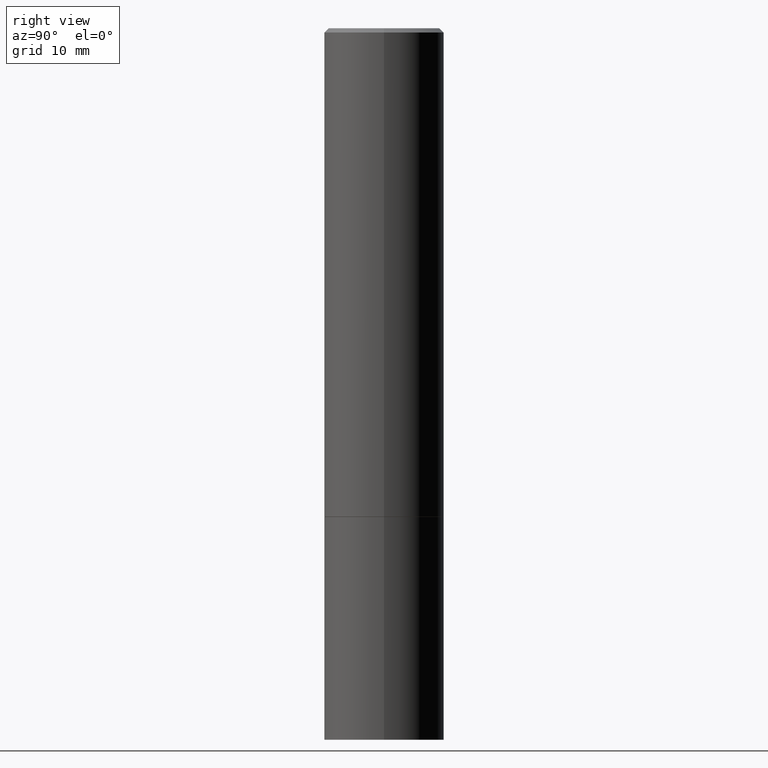
[diagram: clean part render]
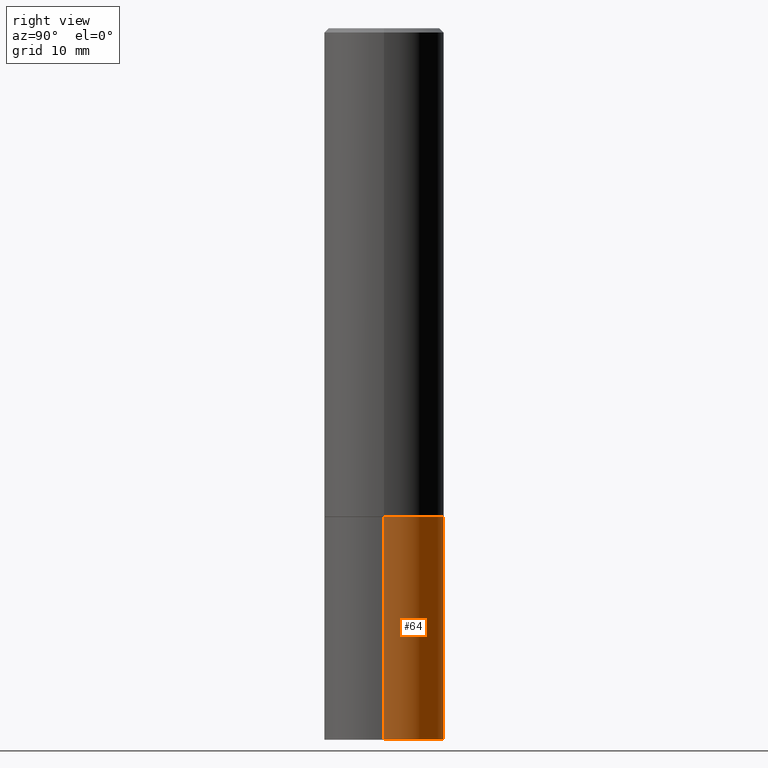
[diagram: same view with one face highlighted and labeled with its STEP entity id]
A machine part, right view. The second image highlights one B-rep face of the part: STEP entity #64.
In plain terms, the highlighted cylindrical surface (partial cylindrical patch) has radius 7.0002 mm, axis along (-0, 0, 1).
Its self-contained STEP definition (entity closure, byte-faithful):
#4 = VERTEX_POINT ( 'NONE', #106 ) ;
#26 = CARTESIAN_POINT ( 'NONE',  ( -0.2756000000000000116, -7.663917641962989379E-15, -2.244100000000000428 ) ) ;
#40 = DIRECTION ( 'NONE',  ( -2.445468806185136877E-29, 3.491481338843145188E-15, 1.000000000000000000 ) ) ;
#41 = CIRCLE ( 'NONE', #315, 0.2756000000000000116 ) ;
#49 = DIRECTION ( 'NONE',  ( -2.445468806185136597E-29, 3.491481338843145583E-15, 1.000000000000000000 ) ) ;
#64 = ADVANCED_FACE ( 'NONE', ( #360 ), #321, .T. ) ;
#73 = ORIENTED_EDGE ( 'NONE', *, *, #251, .F. ) ;
#83 = ORIENTED_EDGE ( 'NONE', *, *, #193, .T. ) ;
#85 = VERTEX_POINT ( 'NONE', #295 ) ;
#106 = CARTESIAN_POINT ( 'NONE',  ( 0.2756000000000000116, -9.759737786468238871E-15, -2.244100000000000428 ) ) ;
#112 = CARTESIAN_POINT ( 'NONE',  ( 0.000000000000000000, 0.000000000000000000, 0.000000000000000000 ) ) ;
#134 = AXIS2_PLACEMENT_3D ( 'NONE', #288, #49, #157 ) ;
#136 = CARTESIAN_POINT ( 'NONE',  ( 0.2756000000000000116, -1.333361808490808139E-14, -3.267700000000000049 ) ) ;
#157 = DIRECTION ( 'NONE',  ( 1.000000000000000000, -6.982962677686265922E-15, 0.000000000000000000 ) ) ;
#166 = EDGE_CURVE ( 'NONE', #352, #4, #177, .T. ) ;
#167 = CIRCLE ( 'NONE', #134, 0.2756000000000000116 ) ;
#174 = DIRECTION ( 'NONE',  ( -2.445468806185136877E-29, 3.491481338843145188E-15, 1.000000000000000000 ) ) ;
#177 = LINE ( 'NONE', #363, #196 ) ;
#193 = EDGE_CURVE ( 'NONE', #85, #306, #258, .T. ) ;
#196 = VECTOR ( 'NONE', #40, 39.37007874015748143 ) ;
#201 = EDGE_CURVE ( 'NONE', #352, #85, #167, .T. ) ;
#205 = CARTESIAN_POINT ( 'NONE',  ( -0.2756000000000000116, 1.958255779754836195E-15, -1.355658510874252007E-29 ) ) ;
#220 = DIRECTION ( 'NONE',  ( -2.445468806185136597E-29, 3.491481338843145583E-15, 1.000000000000000000 ) ) ;
#225 = DIRECTION ( 'NONE',  ( 1.000000000000000000, -6.982962677686267499E-15, 4.876176775795935793E-29 ) ) ;
#247 = ORIENTED_EDGE ( 'NONE', *, *, #166, .F. ) ;
#251 = EDGE_CURVE ( 'NONE', #4, #306, #41, .T. ) ;
#258 = LINE ( 'NONE', #205, #323 ) ;
#288 = CARTESIAN_POINT ( 'NONE',  ( 7.991058417971171713E-29, -1.140911357093774644E-14, -3.267700000000000049 ) ) ;
#295 = CARTESIAN_POINT ( 'NONE',  ( -0.2756000000000000116, -7.663917641962989379E-15, -3.267700000000000049 ) ) ;
#301 = ORIENTED_EDGE ( 'NONE', *, *, #201, .T. ) ;
#302 = DIRECTION ( 'NONE',  ( -2.445468806185136597E-29, 3.491481338843145583E-15, 1.000000000000000000 ) ) ;
#306 = VERTEX_POINT ( 'NONE', #26 ) ;
#315 = AXIS2_PLACEMENT_3D ( 'NONE', #354, #302, #317 ) ;
#317 = DIRECTION ( 'NONE',  ( 1.000000000000000000, -6.982962677686269866E-15, 0.000000000000000000 ) ) ;
#321 = CYLINDRICAL_SURFACE ( 'NONE', #327, 0.2756000000000000116 ) ;
#323 = VECTOR ( 'NONE', #174, 39.37007874015748143 ) ;
#327 = AXIS2_PLACEMENT_3D ( 'NONE', #112, #220, #225 ) ;
#352 = VERTEX_POINT ( 'NONE', #136 ) ;
#353 = EDGE_LOOP ( 'NONE', ( #301, #83, #73, #247 ) ) ;
#354 = CARTESIAN_POINT ( 'NONE',  ( 5.487876547960065873E-29, -7.835233272497903917E-15, -2.244100000000000428 ) ) ;
#360 = FACE_OUTER_BOUND ( 'NONE', #353, .T. ) ;
#363 = CARTESIAN_POINT ( 'NONE',  ( 0.2756000000000000116, -1.924504513970335348E-15, 1.343874319409359987E-29 ) ) ;